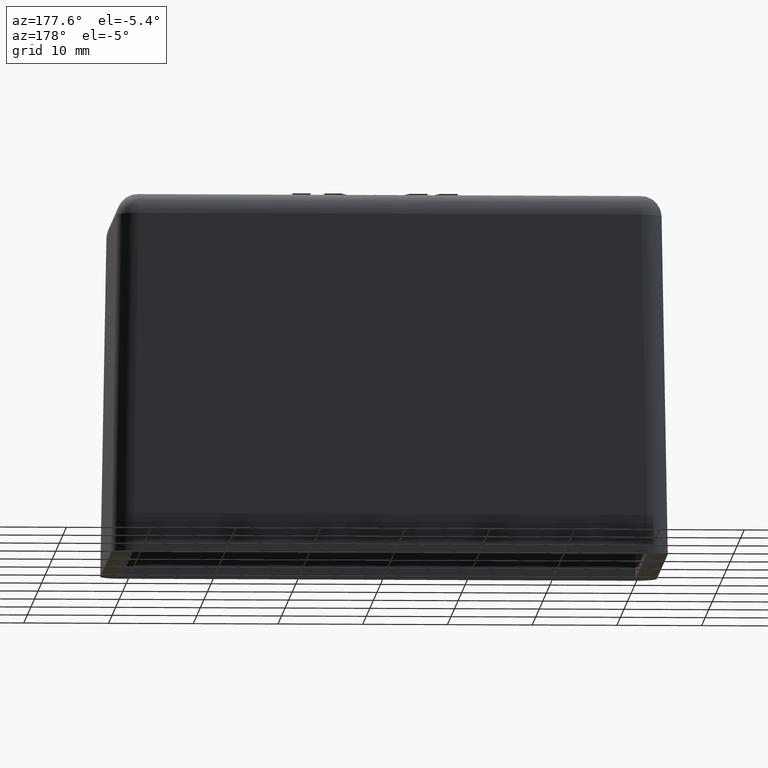
[diagram: clean part render]
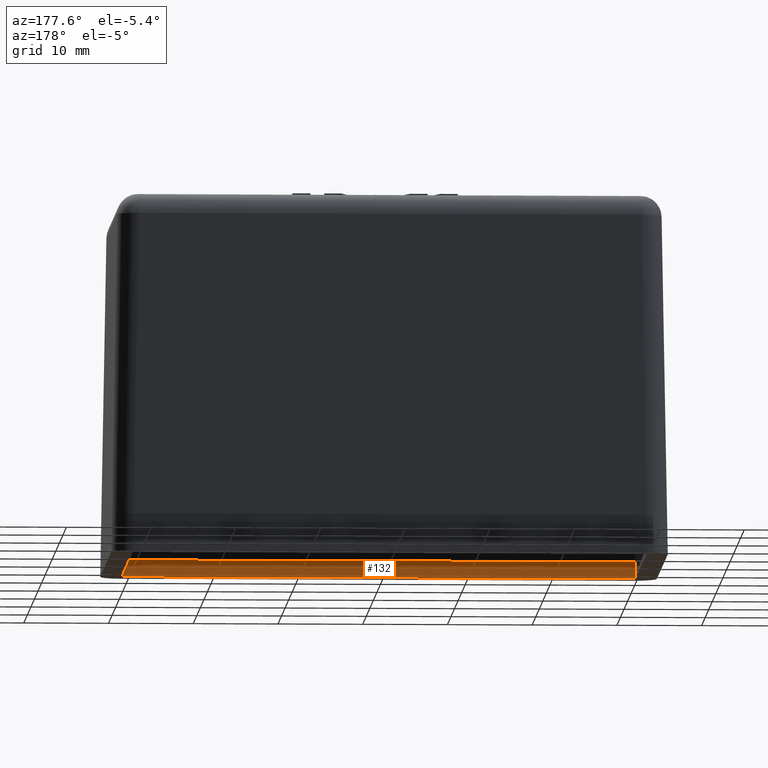
[diagram: same view with one face highlighted and labeled with its STEP entity id]
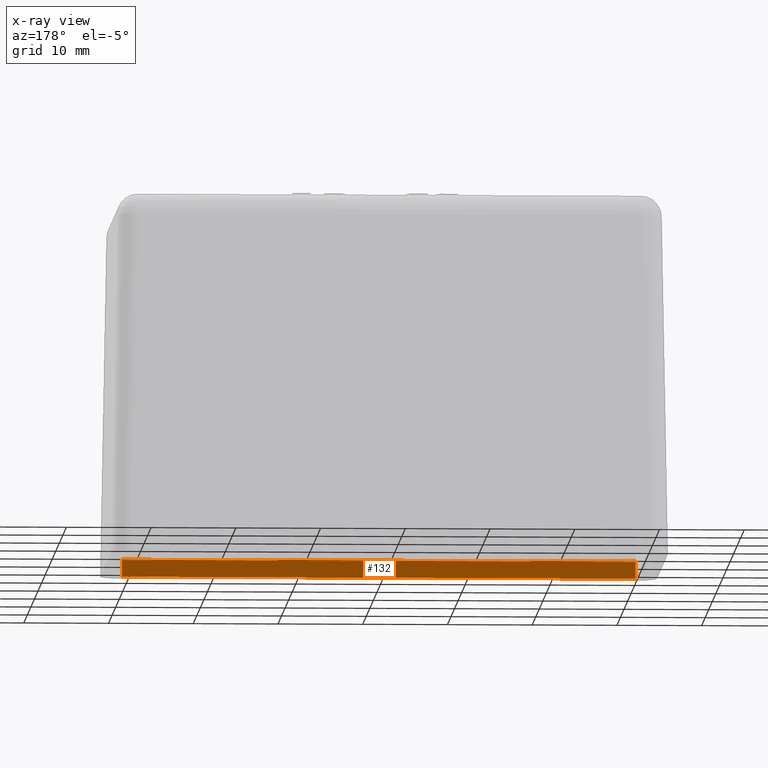
[diagram: x-ray of the same camera — body ghosted, the highlighted face saturated]
A machine part, auxiliary view. The second image highlights one B-rep face of the part: STEP entity #132.
The next image is the same camera in x-ray: the body ghosted, the highlighted face saturated — about 1% of this face is hidden behind the body in this view.
In plain terms, the highlighted planar face has unit normal (0, 1, 0).
Its self-contained STEP definition (entity closure, byte-faithful):
#132 = ADVANCED_FACE( '', ( #318 ), #319, .T. );
#318 = FACE_OUTER_BOUND( '', #563, .T. );
#319 = PLANE( '', #564 );
#563 = EDGE_LOOP( '', ( #1222, #1223, #1224, #1225 ) );
#564 = AXIS2_PLACEMENT_3D( '', #1226, #1227, #1228 );
#1222 = ORIENTED_EDGE( '', *, *, #1806, .T. );
#1223 = ORIENTED_EDGE( '', *, *, #1801, .F. );
#1224 = ORIENTED_EDGE( '', *, *, #1744, .T. );
#1225 = ORIENTED_EDGE( '', *, *, #1805, .T. );
#1226 = CARTESIAN_POINT( '', ( 30.3141911687079, -15.3141911687079, 0.000000000000000 ) );
#1227 = DIRECTION( '', ( 0.000000000000000, 1.00000000000000, 0.000000000000000 ) );
#1228 = DIRECTION( '', ( 1.00000000000000, 0.000000000000000, 0.000000000000000 ) );
#1744 = EDGE_CURVE( '', #2096, #2097, #2098, .T. );
#1801 = EDGE_CURVE( '', #2096, #2178, #2182, .T. );
#1805 = EDGE_CURVE( '', #2097, #2186, #2188, .T. );
#1806 = EDGE_CURVE( '', #2186, #2178, #2189, .F. );
#2096 = VERTEX_POINT( '', #2910 );
#2097 = VERTEX_POINT( '', #2911 );
#2098 = LINE( '', #2912, #2913 );
#2178 = VERTEX_POINT( '', #3049 );
#2182 = LINE( '', #3055, #3056 );
#2186 = VERTEX_POINT( '', #3062 );
#2188 = LINE( '', #3065, #3066 );
#2189 = LINE( '', #3067, #3068 );
#2910 = CARTESIAN_POINT( '', ( 30.3141911687079, -15.3141911687079, 0.000000000000000 ) );
#2911 = CARTESIAN_POINT( '', ( -30.3141911687079, -15.3141911687079, 0.000000000000000 ) );
#2912 = CARTESIAN_POINT( '', ( 30.3141911687079, -15.3141911687079, 0.000000000000000 ) );
#2913 = VECTOR( '', #3324, 1000.00000000000 );
#3049 = CARTESIAN_POINT( '', ( 30.3141911687079, -15.3141911687079, 2.00000000000000 ) );
#3055 = CARTESIAN_POINT( '', ( 30.3141911687079, -15.3141911687079, 0.000000000000000 ) );
#3056 = VECTOR( '', #3391, 1000.00000000000 );
#3062 = CARTESIAN_POINT( '', ( -30.3141911687079, -15.3141911687079, 2.00000000000000 ) );
#3065 = CARTESIAN_POINT( '', ( -30.3141911687079, -15.3141911687079, 0.000000000000000 ) );
#3066 = VECTOR( '', #3395, 1000.00000000000 );
#3067 = CARTESIAN_POINT( '', ( -30.0000000000000, -15.3141911687079, 2.00000000000000 ) );
#3068 = VECTOR( '', #3396, 1000.00000000000 );
#3324 = DIRECTION( '', ( -1.00000000000000, 0.000000000000000, 0.000000000000000 ) );
#3391 = DIRECTION( '', ( 0.000000000000000, 0.000000000000000, 1.00000000000000 ) );
#3395 = DIRECTION( '', ( 0.000000000000000, 0.000000000000000, 1.00000000000000 ) );
#3396 = DIRECTION( '', ( -1.00000000000000, 0.000000000000000, 0.000000000000000 ) );